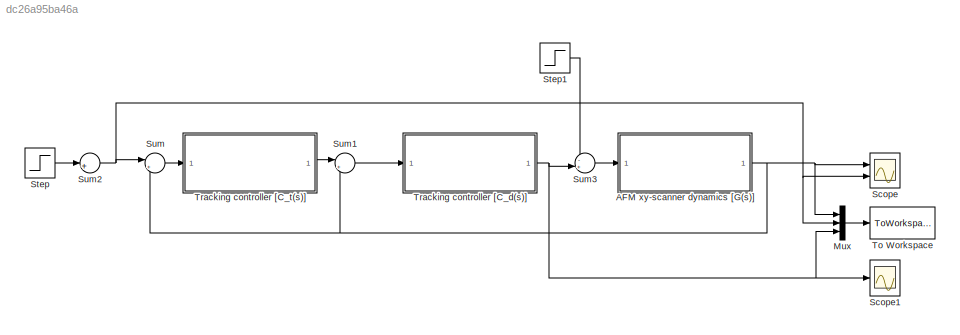
MODEL slx_dc26a95ba46a
KIND model
CONFIG AbsTol = auto
CONFIG EnableMultiTasking = off
CONFIG FixedStep = 1e-6
CONFIG MaxStep = auto
CONFIG MinStep = auto
CONFIG RelTol = 1e-6
CONFIG SampleTimeConstraint = Unconstrained
CONFIG Solver = ode1
CONFIG SolverName = ode1
CONFIG StartTime = 0.0
CONFIG StopTime = simStepSimulationTime
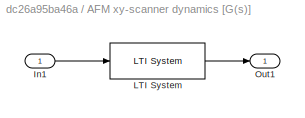
BLOCK [SubSystem] AFM xy-scanner dynamics [G(s)]
  Ports = [1, 1]
  RequestExecContextInheritance = off
BLOCK [Inport] AFM xy-scanner dynamics [G(s)]/In1
  IconDisplay = Port number
BLOCK [Reference] AFM xy-scanner dynamics [G(s)]/LTI System  REF=cstblocks/LTI System
  Ports = [1, 1]
  SourceBlock = cstblocks/LTI System
  SourceProductBaseCode = CT
  SourceProductName = Control System Toolbox
  SourceType = LTI Block
BLOCK [Outport] AFM xy-scanner dynamics [G(s)]/Out1
  IconDisplay = Port number
BLOCK [Mux] Mux
  DisplayOption = bar
  Inputs = 3
  Ports = [3, 1]
BLOCK [Scope] Scope
  Floating = off
  NumInputPorts = 2
  Ports = [2]
  ScopeSpecificationString = Simulink.scopes.TimeScopeBlockCfg('CurrentConfiguration', extmgr.ConfigurationSet(extmgr.Configuration('Core','General UI',true),extmgr.Configuration('Core','Source UI',true),extmgr.Configuration('Sources','WiredSimulink',true),extmgr.Configuration('Visuals','Time Domain',true,'SerializedDisplays',{struct('MinYLimReal','-0.16445','MaxYLimReal','1.48008','YLabelReal','','MinYLimMag','0.00000','MaxY...<+1457ch>
BLOCK [Scope] Scope1
  Floating = off
  NumInputPorts = 1
  Ports = [1]
  ScopeSpecificationString = Simulink.scopes.TimeScopeBlockCfg('CurrentConfiguration', extmgr.ConfigurationSet(extmgr.Configuration('Core','General UI',true),extmgr.Configuration('Core','Source UI',true),extmgr.Configuration('Sources','WiredSimulink',true,'DataLoggingVariableName','ScopeData1'),extmgr.Configuration('Visuals','Time Domain',true,'SerializedDisplays',{struct('MinYLimReal','-5.61288','MaxYLimReal','0.62365','YLab...<+1460ch>
BLOCK [Step] Step
  After = simStepAmplitude
  SampleTime = 0
  Time = 0.01*simStepSimulationTime
BLOCK [Step] Step1
  After = 0
  SampleTime = 0
  Time = 0.4
BLOCK [Sum] Sum
  IconShape = round
  InputSameDT = off
  Inputs = |+-
  OutDataTypeStr = Inherit: Inherit via internal rule
  Ports = [2, 1]
  SaturateOnIntegerOverflow = off
BLOCK [Sum] Sum1
  IconShape = round
  InputSameDT = off
  Inputs = |+-
  OutDataTypeStr = Inherit: Inherit via internal rule
  Ports = [2, 1]
  SaturateOnIntegerOverflow = off
BLOCK [Sum] Sum2
  IconShape = round
  InputSameDT = off
  Inputs = |+|
  OutDataTypeStr = Inherit: Inherit via internal rule
  Ports = [1, 1]
  SaturateOnIntegerOverflow = off
BLOCK [Sum] Sum3
  IconShape = round
  InputSameDT = off
  Inputs = -+|
  OutDataTypeStr = Inherit: Inherit via internal rule
  Ports = [2, 1]
  SaturateOnIntegerOverflow = off
BLOCK [ToWorkspace] To Workspace
  FixptAsFi = on
  MaxDataPoints = inf
  Ports = [1]
  SampleTime = -1
  Save2DSignal = 3-D array (concatenate along third dimension)
  SaveFormat = Timeseries
  VariableName = sim_data
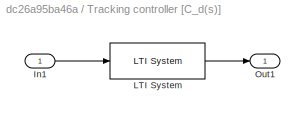
BLOCK [SubSystem] Tracking controller [C_d(s)]
  Ports = [1, 1]
  RequestExecContextInheritance = off
BLOCK [Inport] Tracking controller [C_d(s)]/In1
  IconDisplay = Port number
BLOCK [Reference] Tracking controller [C_d(s)]/LTI System  REF=cstblocks/LTI System
  Ports = [1, 1]
  SourceBlock = cstblocks/LTI System
  SourceProductBaseCode = CT
  SourceProductName = Control System Toolbox
  SourceType = LTI Block
BLOCK [Outport] Tracking controller [C_d(s)]/Out1
  IconDisplay = Port number
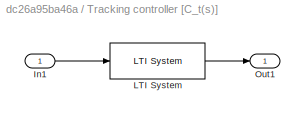
BLOCK [SubSystem] Tracking controller [C_t(s)]
  Ports = [1, 1]
  RequestExecContextInheritance = off
BLOCK [Inport] Tracking controller [C_t(s)]/In1
  IconDisplay = Port number
BLOCK [Reference] Tracking controller [C_t(s)]/LTI System  REF=cstblocks/LTI System
  Ports = [1, 1]
  SourceBlock = cstblocks/LTI System
  SourceProductBaseCode = CT
  SourceProductName = Control System Toolbox
  SourceType = LTI Block
BLOCK [Outport] Tracking controller [C_t(s)]/Out1
  IconDisplay = Port number
LINE AFM xy-scanner dynamics [G(s)]/In1:1 -> AFM xy-scanner dynamics [G(s)]/LTI System:1
LINE AFM xy-scanner dynamics [G(s)]/LTI System:1 -> AFM xy-scanner dynamics [G(s)]/Out1:1
NET AFM xy-scanner dynamics [G(s)]:1 -> Mux:1, Scope:1, Sum1:2, Sum:2
LINE Mux:1 -> To Workspace:1
LINE Step1:1 -> Sum3:1
LINE Step:1 -> Sum2:1
LINE Sum1:1 -> Tracking controller [C_d(s)]:1
NET Sum2:1 -> Mux:2, Scope:2, Sum:1
LINE Sum3:1 -> AFM xy-scanner dynamics [G(s)]:1
LINE Sum:1 -> Tracking controller [C_t(s)]:1
LINE Tracking controller [C_d(s)]/In1:1 -> Tracking controller [C_d(s)]/LTI System:1
LINE Tracking controller [C_d(s)]/LTI System:1 -> Tracking controller [C_d(s)]/Out1:1
NET Tracking controller [C_d(s)]:1 -> Mux:3, Scope1:1, Sum3:2
LINE Tracking controller [C_t(s)]/In1:1 -> Tracking controller [C_t(s)]/LTI System:1
LINE Tracking controller [C_t(s)]/LTI System:1 -> Tracking controller [C_t(s)]/Out1:1
LINE Tracking controller [C_t(s)]:1 -> Sum1:1
note: NET lines group one-source signal fan-out (src -> all destinations, sorted); 1:1 wires keep LINE
